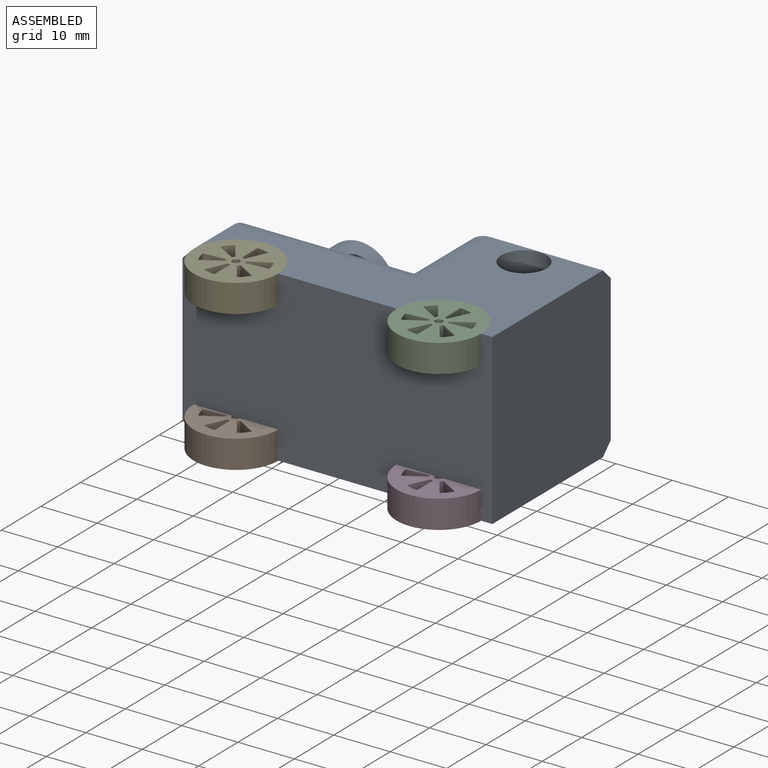
[diagram: assembled view]
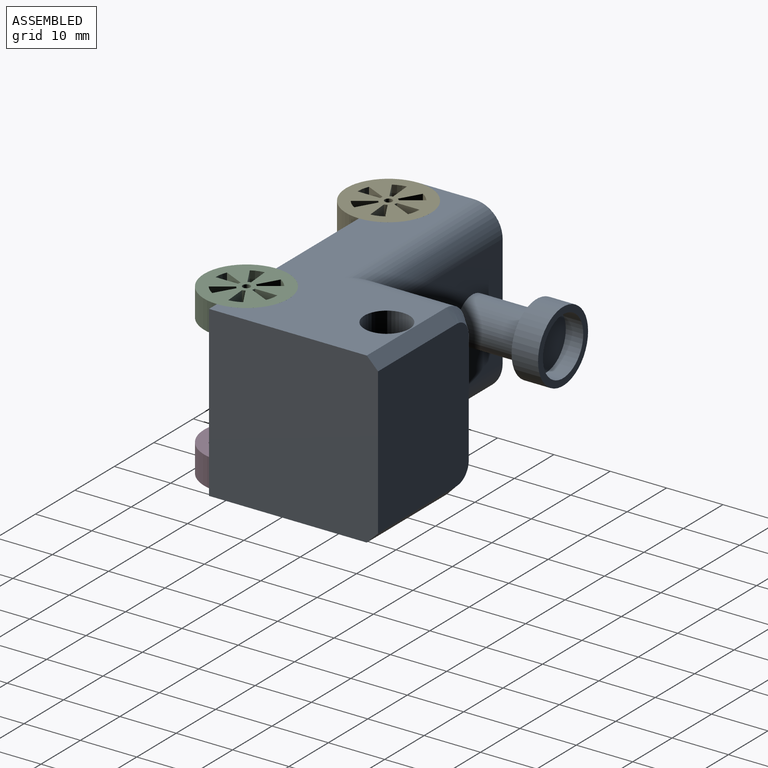
[diagram: assembled view, second angle]
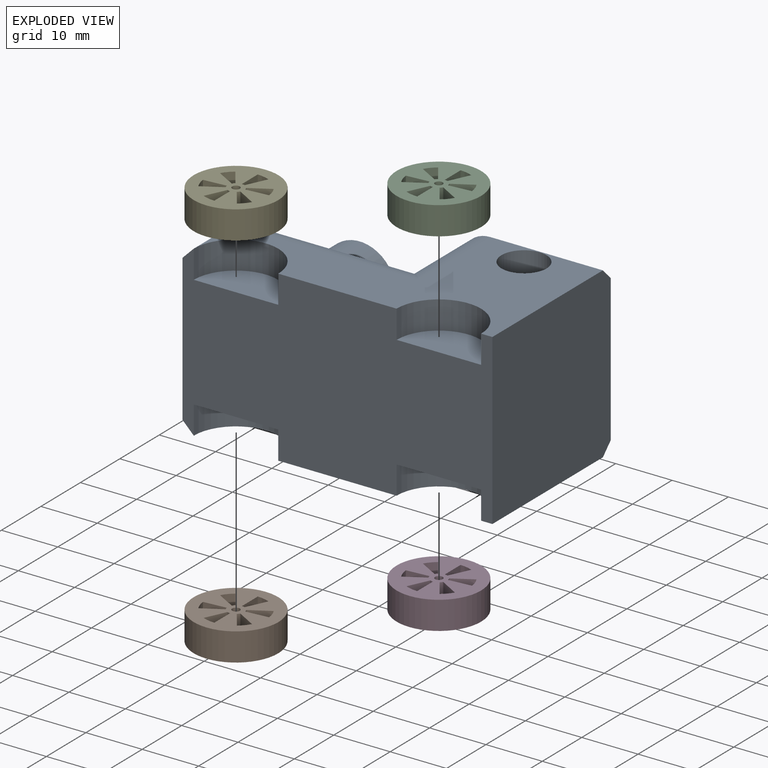
[diagram: exploded view]
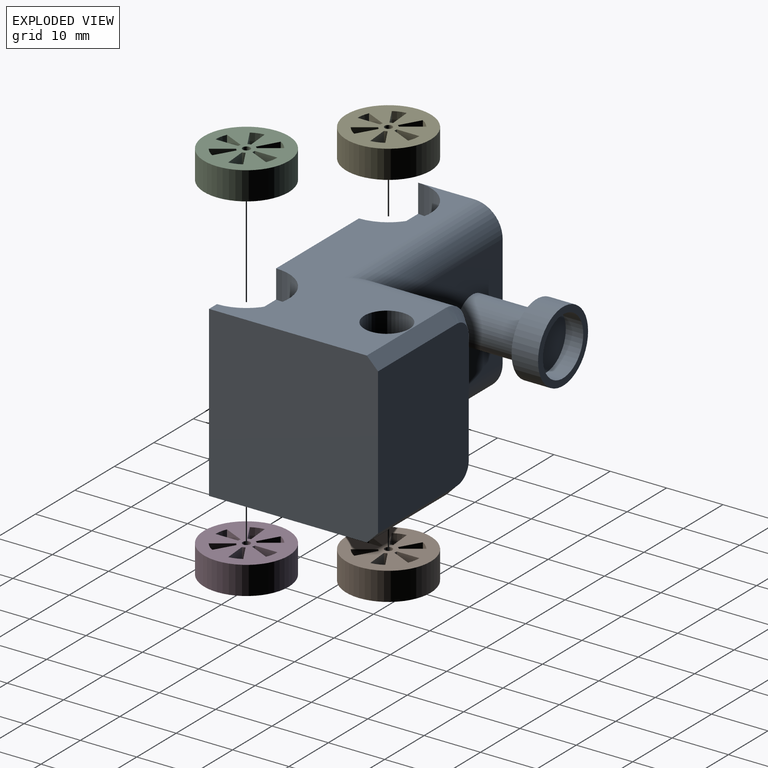
[diagram: exploded view, second angle]
ASSEMBLY  parts=5 mates=4
PART A: 41 faces, bbox 55x31.1x30 mm
  f0: plane 55x30mm, normal (0,-1,0), area 1346mm2, adj f1,f3,f4,f5,f8,f9,f10,f11
  f1: plane 53x28mm, normal (0,0,-1), area 663mm2, adj f0,f4,f13,f15,f16,f17,f24,f27
  f2: plane 26x23mm, normal (0,1,0), area 594.1mm2, adj f4,f25,f26,f27,f28,f29
  f3: plane 26x13mm, normal (-1,0,0), area 309mm2, adj f0,f20,f21,f22,f23,f24,f31,f33
  f4: plane 30x30mm, normal (1,0,0), area 896mm2, adj f0,f1,f2,f5,f25,f27
  f5: plane 53x28mm, normal (0,0,1), area 663mm2, adj f0,f4,f9,f11,f18,f19,f20,f25
  f6: plane 28x20mm, normal (0,1,0), area 509.7mm2, adj f7,f17,f18,f22,f35
  f7: plane 20x13mm, normal (-1,0,0), area 260mm2, adj f6,f16,f19,f28
  f8: plane 15x7.5mm, normal (0,0,1), area 88.4mm2, adj f0,f9
  f9: cylinder r=7.5mm len=15mm, axis (0,0,1), area 117.8mm2, adj f0,f5,f8
  f10: plane 15x7.5mm, normal (0,0,1), area 88.4mm2, adj f0,f11
  f11: cylinder r=7.5mm len=15mm, axis (0,0,1), area 117.8mm2, adj f0,f5,f10
  f12: plane 15x7.5mm, normal (0,0,-1), area 88.4mm2, adj f0,f13
  f13: cylinder r=7.5mm len=15mm, axis (0,0,-1), area 117.8mm2, adj f0,f1,f12
  f14: plane 15x7.5mm, normal (0,0,-1), area 88.4mm2, adj f0,f15
  f15: cylinder r=7.5mm len=15mm, axis (0,0,-1), area 117.8mm2, adj f0,f1,f14
  f16: cylinder r=5mm len=18mm, axis (0,1,0), area 116.4mm2, adj f1,f7,f17,f29
  f17: cylinder r=5mm len=33mm, axis (1,0,0), area 234.2mm2, adj f1,f6,f16,f23
  f18: cylinder r=5mm len=33mm, axis (-1,0,0), area 234.2mm2, adj f5,f6,f19,f21
  f19: cylinder r=5mm len=18mm, axis (0,-1,0), area 116.4mm2, adj f5,f7,f18,f26
  f20: plane 10x2mm, normal (-0.71,0,0.71), area 28.3mm2, adj f0,f3,f5,f21
  f21: cone r=3mm half-angle=45deg, axis (1,0,0), area 17.8mm2, adj f3,f18,f20,f22
  f22: plane 20x2mm, normal (-0.71,0.71,0), area 56.6mm2, adj f3,f6,f21,f23
  f23: cone r=3mm half-angle=45deg, axis (1,0,0), area 17.8mm2, adj f3,f17,f22,f24
  f24: plane 10x2mm, normal (-0.71,0,-0.71), area 28.3mm2, adj f0,f1,f3,f23
  f25: plane 20x2mm, normal (0,0.71,0.71), area 56.6mm2, adj f2,f4,f5,f26
  f26: cone r=3mm half-angle=45deg, axis (0,-1,0), area 17.8mm2, adj f2,f19,f25,f28
  f27: plane 20x2mm, normal (0,0.71,-0.71), area 56.6mm2, adj f1,f2,f4,f29
  f28: plane 20x2mm, normal (-0.71,0.71,0), area 56.6mm2, adj f2,f7,f26,f29
  f29: cone r=3mm half-angle=45deg, axis (0,-1,0), area 17.8mm2, adj f2,f16,f27,f28
  f30: cylinder r=4mm len=30mm, axis (0,0,1), area 754mm2, adj f1,f5
  f31: cylinder r=2mm len=4mm, axis (-1,0,0), area 42.7mm2, adj f3,f32
  f32: plane 4x4mm, normal (-1,0,0), area 12.6mm2, adj f31
  f33: cylinder r=2mm len=4mm, axis (-1,0,0), area 42.7mm2, adj f3,f34
  f34: plane 4x4mm, normal (-1,0,0), area 12.6mm2, adj f33
  f35: cylinder r=4mm len=11.4mm, axis (0,-1,0), area 286.5mm2, adj f6,f38
  f36: cylinder r=6.34mm len=12.68mm, axis (0,-1,0), area 187.2mm2, adj f37,f38
  f37: plane 12.68x12.68mm, normal (0,1,0), area 43.9mm2, adj f36,f39
  f38: plane 12.68x12.68mm, normal (0,-1,0), area 76mm2, adj f35,f36
  f39: cylinder r=5.12mm len=10.24mm, axis (0,1,0), area 99.7mm2, adj f37,f40
  f40: plane 10.24x10.24mm, normal (0,1,0), area 82.3mm2, adj f39
PART B: 28 faces, bbox 15x15x5 mm
  f0: plane 15x15mm, normal (0,0,1), area 141.1mm2, adj f2,f3,f4,f5,f6,f7,f8,f9
  f1: plane 15x15mm, normal (0,0,-1), area 141.1mm2, adj f2,f3,f4,f5,f6,f7,f8,f9
  f2: cylinder r=7.5mm len=15mm, axis (0,0,-1), area 235.6mm2, adj f0,f1
  f3: plane 5x3.63mm, normal (-0.91,0.42,0), area 20mm2, adj f0,f1,f4,f6
  f4: cylinder r=5.5mm len=5mm, axis (0,0,1), area 11.5mm2, adj f0,f1,f3,f5
  f5: plane 5x4mm, normal (1,0,0), area 20mm2, adj f0,f1,f4,f6
  f6: cylinder r=1.5mm len=5mm, axis (0,0,1), area 2.8mm2, adj f0,f1,f3,f5
  f7: plane 5x3.46mm, normal (0.5,-0.87,0), area 20mm2, adj f0,f1,f8,f10
  f8: cylinder r=1.5mm len=5mm, axis (0,0,1), area 2.8mm2, adj f0,f1,f7,f9
  f9: plane 5x3.99mm, normal (-0.09,1,0), area 20mm2, adj f0,f1,f8,f10
  f10: cylinder r=5.5mm len=5mm, axis (0,0,1), area 11.5mm2, adj f0,f1,f7,f9
  f11: plane 5x3.46mm, normal (0.5,0.87,0), area 20mm2, adj f0,f1,f12,f14
  f12: cylinder r=1.5mm len=5mm, axis (0,0,1), area 2.8mm2, adj f0,f1,f11,f13
  f13: plane 5x3.28mm, normal (-0.82,-0.57,0), area 20mm2, adj f0,f1,f12,f14
  f14: cylinder r=5.5mm len=5mm, axis (0,0,1), area 11.5mm2, adj f0,f1,f11,f13
  f15: plane 5x3.46mm, normal (-0.5,0.87,0), area 20mm2, adj f0,f1,f16,f18
  f16: cylinder r=1.5mm len=5mm, axis (0,0,1), area 2.8mm2, adj f0,f1,f15,f17
  f17: plane 5x3.99mm, normal (0.09,-1,0), area 20mm2, adj f0,f1,f16,f18
  f18: cylinder r=5.5mm len=5mm, axis (0,0,1), area 11.5mm2, adj f0,f1,f15,f17
  f19: plane 5x4mm, normal (-1,0,0), area 20mm2, adj f0,f1,f20,f22
  f20: cylinder r=1.5mm len=5mm, axis (0,0,1), area 2.8mm2, adj f0,f1,f19,f21
  f21: plane 5x3.63mm, normal (0.91,-0.42,0), area 20mm2, adj f0,f1,f20,f22
  f22: cylinder r=5.5mm len=5mm, axis (0,0,1), area 11.5mm2, adj f0,f1,f19,f21
  f23: plane 5x3.46mm, normal (-0.5,-0.87,0), area 20mm2, adj f0,f1,f24,f26
  f24: cylinder r=1.5mm len=5mm, axis (0,0,1), area 2.8mm2, adj f0,f1,f23,f25
  f25: plane 5x3.28mm, normal (0.82,0.57,0), area 20mm2, adj f0,f1,f24,f26
  f26: cylinder r=5.5mm len=5mm, axis (0,0,1), area 11.5mm2, adj f0,f1,f23,f25
  f27: cylinder r=0.68mm len=5mm, axis (0,0,1), area 21.3mm2, adj f0,f1
PART C: same geometry as B
PART D: same geometry as B
PART E: same geometry as B
PLACE A rot(axis=(-0.71,-0.01,-0.71),0deg) t=(119.12,1.46,-13.32)mm
PLACE B rot(axis=(-0.71,-0.01,-0.71),0deg) t=(101.12,-13.54,-28.32)mm
PLACE C rot(axis=(-0.71,-0.01,-0.71),0deg) t=(137.12,-13.54,-3.32)mm
PLACE D rot(axis=(-0.71,-0.01,-0.71),0deg) t=(137.12,-13.54,-28.32)mm
PLACE E rot(axis=(-0.71,-0.01,-0.71),0deg) t=(101.12,-13.54,-3.32)mm
MATE revolute D.f2 <-> A.f9  axis (0,0,-1) through (137.12,-13.54,-28.32)mm
MATE revolute B.f2 <-> A.f11  axis (0,0,-1) through (101.12,-13.54,-25.82)mm
MATE revolute C.f2 <-> A.f9  axis (0,0,-1) through (137.12,-13.54,-0.82)mm
MATE revolute A.f11 <-> E.f2  axis (0,0,1) through (101.12,-13.54,-0.82)mm
